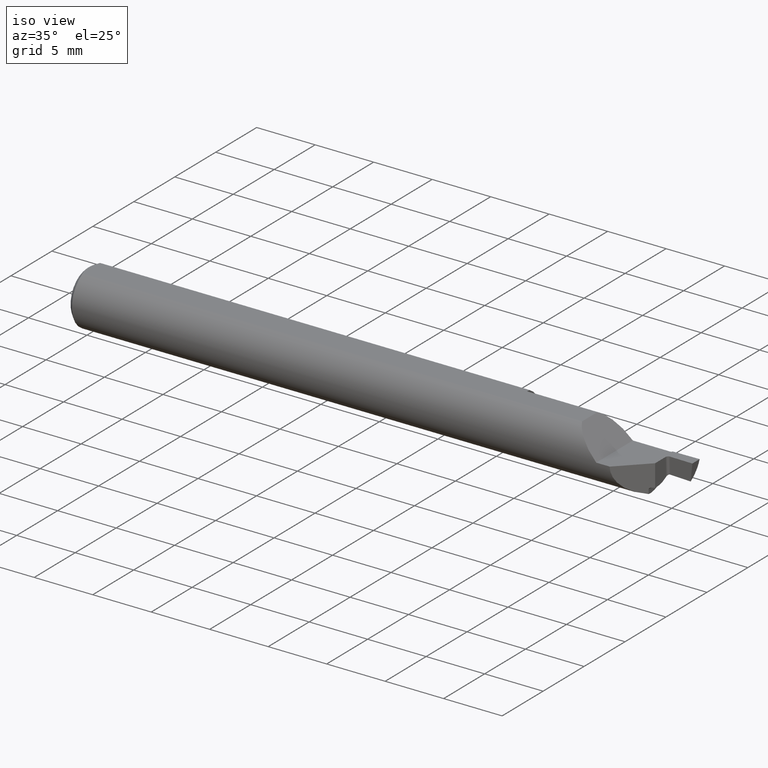
[diagram: clean part render]
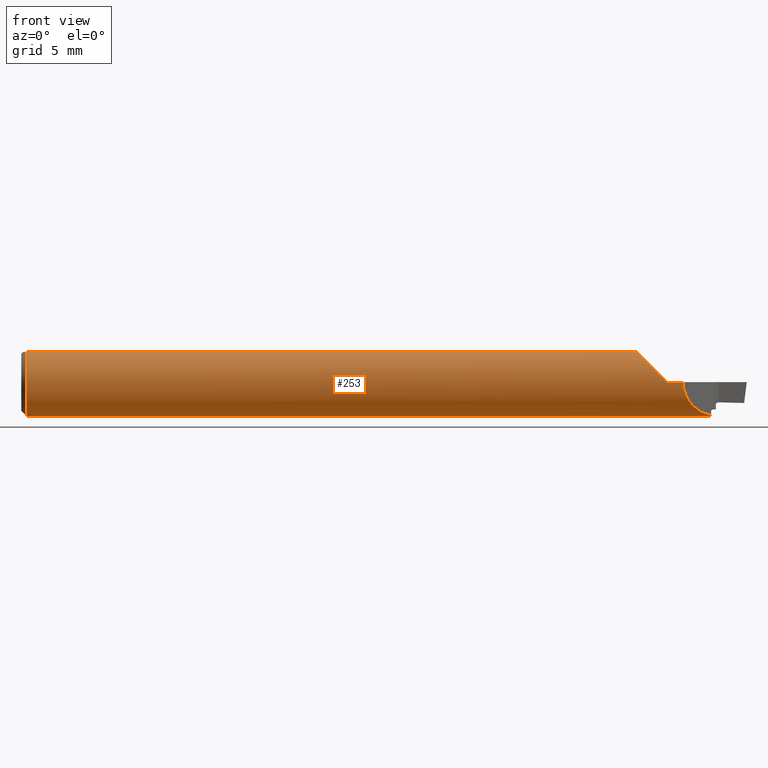
[diagram: tour spotlight — one face highlighted and labeled with its STEP entity id]
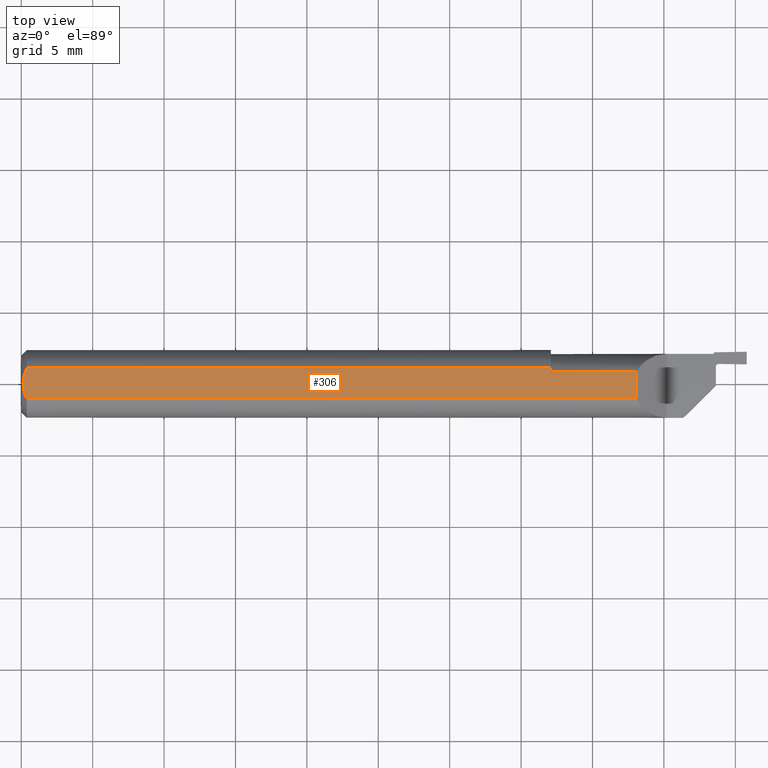
[diagram: tour spotlight — one face highlighted and labeled with its STEP entity id]
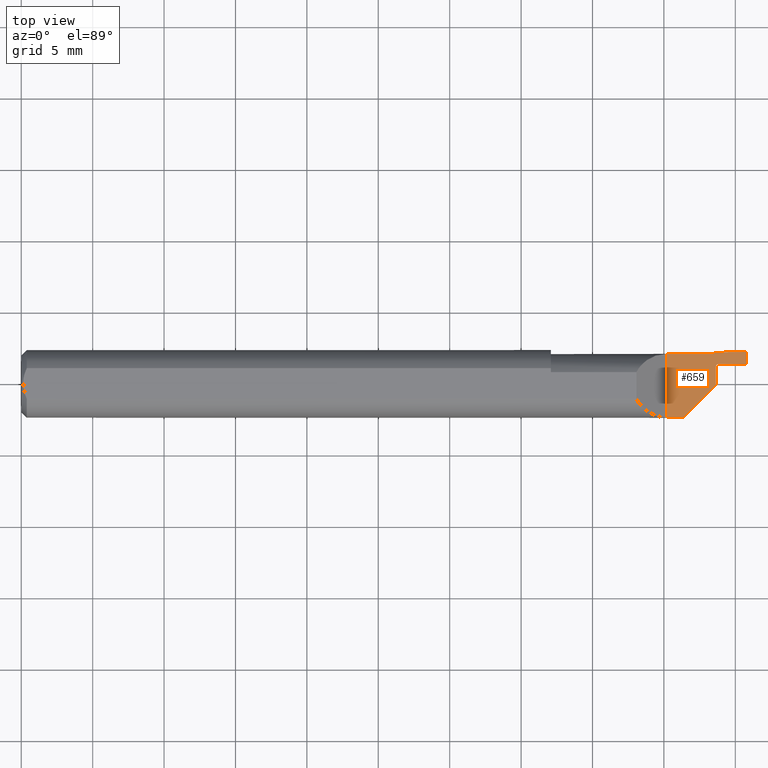
[diagram: tour spotlight — one face highlighted and labeled with its STEP entity id]
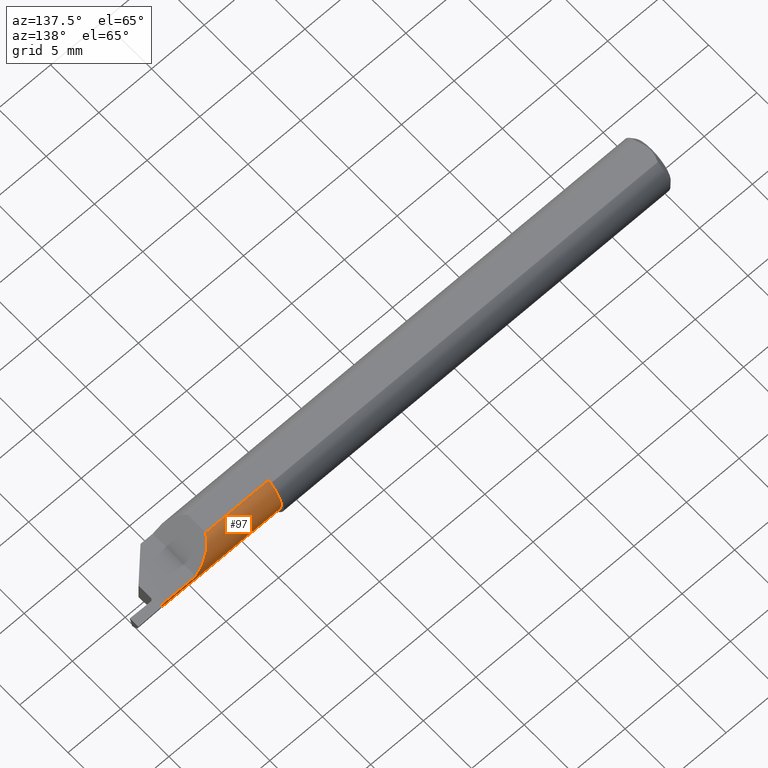
[diagram: tour spotlight — one face highlighted and labeled with its STEP entity id]
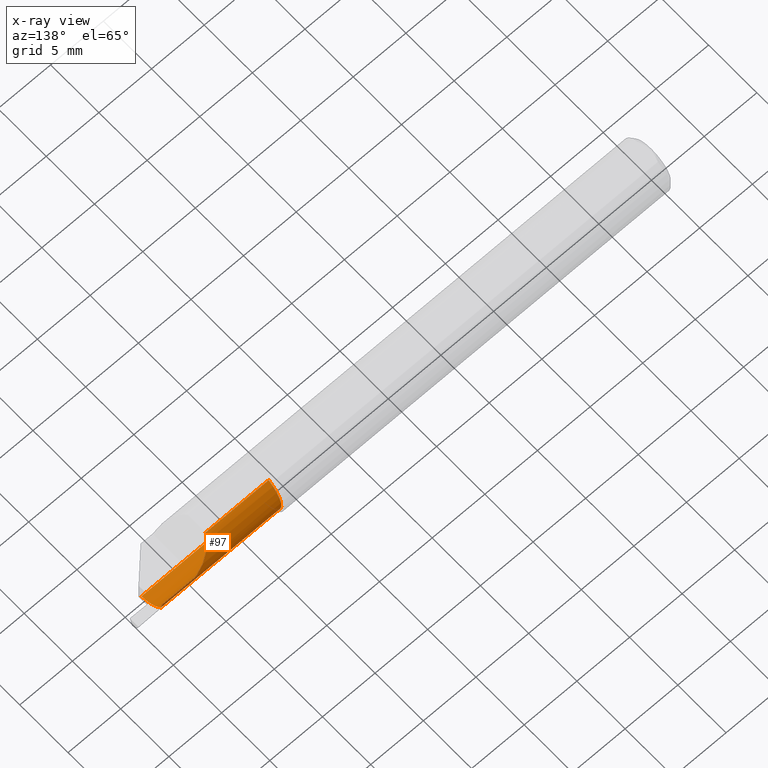
[diagram: x-ray of the same camera — body ghosted, this tour face saturated]
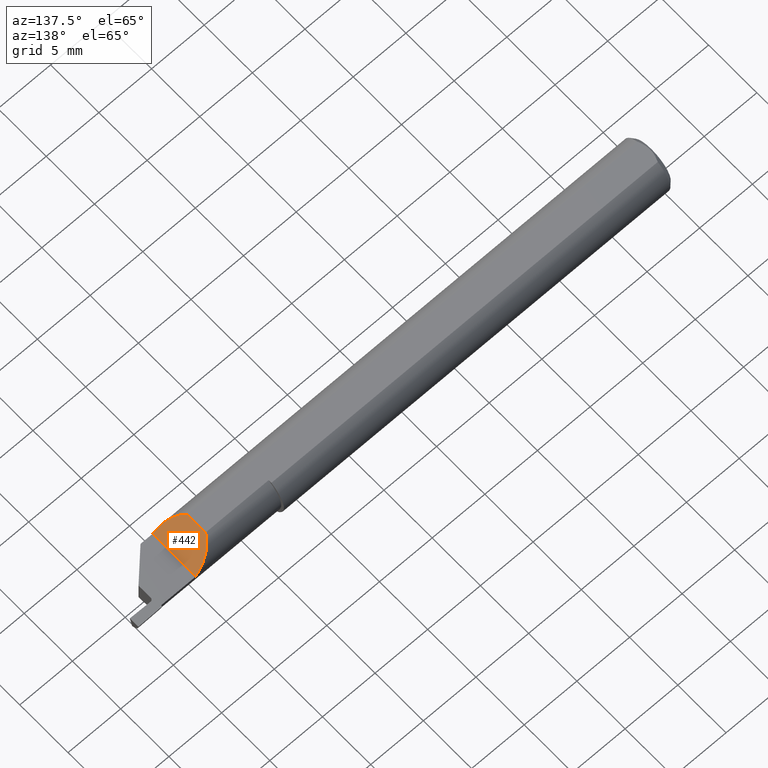
[diagram: tour spotlight — one face highlighted and labeled with its STEP entity id]
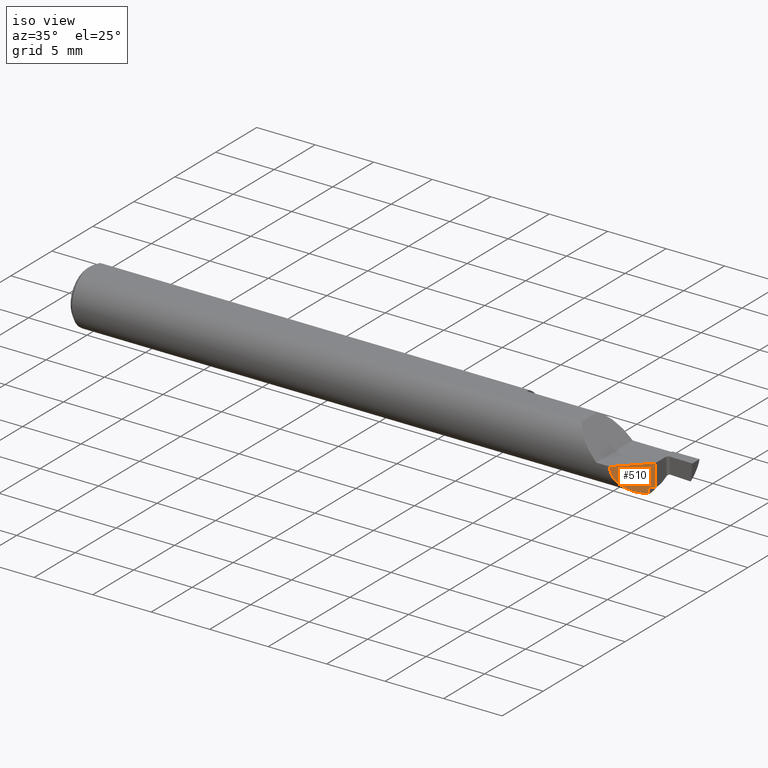
[diagram: tour spotlight — one face highlighted and labeled with its STEP entity id]
A machine part: a face-by-face anatomy tour. The part has 21 B-rep faces; the first image is the clean iso view, then the 6 largest visible faces are spotlighted one at a time (largest first), each with its STEP entity span.

Face 1 — front view, entity #253. In plain terms, the highlighted cylindrical surface (edge-blend (fillet) strip) has radius 2.3774 mm, axis along (-1, -0, -0).
Definition (entity closure, byte-faithful):
#14 = CARTESIAN_POINT ( 'NONE',  ( 1.743269953535348638, -0.09360000000000001652, 0.03633004646465035764 ) ) ;
#26 = CARTESIAN_POINT ( 'NONE',  ( 0.01499999999999997689, 0.000000000000000000, 0.000000000000000000 ) ) ;
#36 = ORIENTED_EDGE ( 'NONE', *, *, #182, .T. ) ;
#38 = DIRECTION ( 'NONE',  ( -1.000000000000000000, -0.000000000000000000, -0.000000000000000000 ) ) ;
#52 = ORIENTED_EDGE ( 'NONE', *, *, #721, .T. ) ;
#57 = LINE ( 'NONE', #354, #665 ) ;
#66 =( BOUNDED_CURVE ( )  B_SPLINE_CURVE ( 3, ( #189, #14, #436, #626 ),
 .UNSPECIFIED., .F., .T. ) 
 B_SPLINE_CURVE_WITH_KNOTS ( ( 4, 4 ),
 ( 4.712388980384689674, 5.816717474156034129 ),
 .UNSPECIFIED. ) 
 CURVE ( )  GEOMETRIC_REPRESENTATION_ITEM ( )  RATIONAL_B_SPLINE_CURVE ( ( 1.000000000000000000, 0.9009275347591065852, 0.9009275347591065852, 1.000000000000000000 ) ) 
 REPRESENTATION_ITEM ( '' )  );
#88 = EDGE_CURVE ( 'NONE', #237, #355, #431, .T. ) ;
#89 = EDGE_CURVE ( 'NONE', #420, #660, #509, .T. ) ;
#99 = CARTESIAN_POINT ( 'NONE',  ( 0.01499999999999997689, -0.04209513035969836975, 0.08360000000000000764 ) ) ;
#103 = CYLINDRICAL_SURFACE ( 'NONE', #705, 0.09360000000000001652 ) ;
#105 = VERTEX_POINT ( 'NONE', #322 ) ;
#112 = EDGE_CURVE ( 'NONE', #233, #420, #714, .T. ) ;
#120 = ORIENTED_EDGE ( 'NONE', *, *, #541, .F. ) ;
#138 = CARTESIAN_POINT ( 'NONE',  ( 1.901789468821874829, -0.009791286923857110344, -0.09315189377763251344 ) ) ;
#182 = EDGE_CURVE ( 'NONE', #393, #227, #207, .T. ) ;
#185 = ORIENTED_EDGE ( 'NONE', *, *, #673, .T. ) ;
#189 = CARTESIAN_POINT ( 'NONE',  ( 1.779599999999998516, -0.09360000000000001652, 0.000000000000000000 ) ) ;
#200 = CARTESIAN_POINT ( 'NONE',  ( 1.901909888257020897, -0.01669011174297880401, -0.09209994663411529003 ) ) ;
#207 = LINE ( 'NONE', #389, #717 ) ;
#212 = ORIENTED_EDGE ( 'NONE', *, *, #112, .T. ) ;
#219 = DIRECTION ( 'NONE',  ( 1.000000000000000000, 0.000000000000000000, 0.000000000000000000 ) ) ;
#226 = CARTESIAN_POINT ( 'NONE',  ( 1.695999999999999286, -0.04209513035969836975, 0.08360000000000000764 ) ) ;
#227 = VERTEX_POINT ( 'NONE', #99 ) ;
#233 = VERTEX_POINT ( 'NONE', #643 ) ;
#237 = VERTEX_POINT ( 'NONE', #398 ) ;
#245 = EDGE_CURVE ( 'NONE', #401, #105, #382, .T. ) ;
#246 = CARTESIAN_POINT ( 'NONE',  ( 0.01499999999999997689, 0.000000000000000000, 0.000000000000000000 ) ) ;
#253 = ADVANCED_FACE ( 'NONE', ( #281 ), #103, .T. ) ;
#257 = DIRECTION ( 'NONE',  ( 0.000000000000000000, 0.000000000000000000, -1.000000000000000000 ) ) ;
#274 = DIRECTION ( 'NONE',  ( 0.000000000000000000, 0.000000000000000000, -1.000000000000000000 ) ) ;
#281 = FACE_OUTER_BOUND ( 'NONE', #303, .T. ) ;
#282 = ORIENTED_EDGE ( 'NONE', *, *, #88, .T. ) ;
#290 = ORIENTED_EDGE ( 'NONE', *, *, #245, .F. ) ;
#296 = CARTESIAN_POINT ( 'NONE',  ( 1.824999999999999512, -0.09360000000000003040, 0.000000000000000000 ) ) ;
#302 = CARTESIAN_POINT ( 'NONE',  ( 1.779599999999998516, -0.09360000000000001652, 0.000000000000000000 ) ) ;
#303 = EDGE_LOOP ( 'NONE', ( #290, #120, #52, #212, #504, #185, #36, #491, #282, #406 ) ) ;
#315 = DIRECTION ( 'NONE',  ( 1.000000000000000000, 0.000000000000000000, 0.000000000000000000 ) ) ;
#322 = CARTESIAN_POINT ( 'NONE',  ( 1.459999999999999964, 0.04209513035969836975, 0.08360000000000000764 ) ) ;
#332 = VECTOR ( 'NONE', #620, 39.37007874015748143 ) ;
#334 = DIRECTION ( 'NONE',  ( 0.000000000000000000, 0.000000000000000000, 1.000000000000000000 ) ) ;
#338 = CARTESIAN_POINT ( 'NONE',  ( 1.459999999999999964, 0.000000000000000000, 0.000000000000000000 ) ) ;
#343 = DIRECTION ( 'NONE',  ( -1.000000000000000000, -0.000000000000000000, -0.000000000000000000 ) ) ;
#354 = CARTESIAN_POINT ( 'NONE',  ( 0.000000000000000000, 0.04209513035969836975, 0.08360000000000000764 ) ) ;
#355 = VERTEX_POINT ( 'NONE', #605 ) ;
#377 = CARTESIAN_POINT ( 'NONE',  ( 1.901728677906842080, -0.006308577734127045721, -0.09338716103925931433 ) ) ;
#382 = CIRCLE ( 'NONE', #549, 0.09360000000000001652 ) ;
#384 = CARTESIAN_POINT ( 'NONE',  ( 1.824999999999999734, -0.09359999999999998876, -0.04733077926877288927 ) ) ;
#388 = EDGE_CURVE ( 'NONE', #355, #105, #57, .T. ) ;
#389 = CARTESIAN_POINT ( 'NONE',  ( 0.000000000000000000, -0.04209513035969836975, 0.08360000000000000764 ) ) ;
#393 = VERTEX_POINT ( 'NONE', #226 ) ;
#398 = CARTESIAN_POINT ( 'NONE',  ( 0.01499999999999997689, 0.000000000000000000, -0.09360000000000003040 ) ) ;
#401 = VERTEX_POINT ( 'NONE', #545 ) ;
#406 = ORIENTED_EDGE ( 'NONE', *, *, #388, .T. ) ;
#412 = CIRCLE ( 'NONE', #562, 0.09360000000000001652 ) ;
#420 = VERTEX_POINT ( 'NONE', #481 ) ;
#431 = CIRCLE ( 'NONE', #597, 0.09360000000000001652 ) ;
#436 = CARTESIAN_POINT ( 'NONE',  ( 1.712338867969052103, -0.07454376160376645355, 0.06726113203094705173 ) ) ;
#447 = CARTESIAN_POINT ( 'NONE',  ( 1.901849935261683777, -0.01325540694044773093, -0.09272237486619804014 ) ) ;
#481 = CARTESIAN_POINT ( 'NONE',  ( 1.824999999999999512, -0.09360000000000003040, 0.000000000000000000 ) ) ;
#491 = ORIENTED_EDGE ( 'NONE', *, *, #709, .T. ) ;
#503 = CARTESIAN_POINT ( 'NONE',  ( 1.901909888257020897, -0.01669011174297880401, -0.09209994663411529003 ) ) ;
#504 = ORIENTED_EDGE ( 'NONE', *, *, #89, .T. ) ;
#509 = LINE ( 'NONE', #764, #332 ) ;
#528 = LINE ( 'NONE', #584, #628 ) ;
#529 = CARTESIAN_POINT ( 'NONE',  ( 0.000000000000000000, 0.000000000000000000, 0.000000000000000000 ) ) ;
#541 = EDGE_CURVE ( 'NONE', #618, #401, #528, .T. ) ;
#545 = CARTESIAN_POINT ( 'NONE',  ( 1.459999999999999964, -0.006308577734120247339, -0.09338716103925938372 ) ) ;
#549 = AXIS2_PLACEMENT_3D ( 'NONE', #338, #219, #274 ) ;
#562 = AXIS2_PLACEMENT_3D ( 'NONE', #246, #315, #691 ) ;
#584 = CARTESIAN_POINT ( 'NONE',  ( 1.683499999999999996, -0.006308577734120256013, -0.09338716103925938372 ) ) ;
#597 = AXIS2_PLACEMENT_3D ( 'NONE', #26, #680, #257 ) ;
#605 = CARTESIAN_POINT ( 'NONE',  ( 0.01499999999999997689, 0.04209513035969836975, 0.08360000000000000764 ) ) ;
#618 = VERTEX_POINT ( 'NONE', #751 ) ;
#620 = DIRECTION ( 'NONE',  ( -1.000000000000000000, -0.000000000000000000, -0.000000000000000000 ) ) ;
#626 = CARTESIAN_POINT ( 'NONE',  ( 1.695999999999999286, -0.04209513035969836975, 0.08360000000000000764 ) ) ;
#628 = VECTOR ( 'NONE', #38, 39.37007874015748143 ) ;
#643 = CARTESIAN_POINT ( 'NONE',  ( 1.901909888257020897, -0.01669011174297880401, -0.09209994663411529003 ) ) ;
#653 = DIRECTION ( 'NONE',  ( -1.000000000000000000, -0.000000000000000000, -0.000000000000000000 ) ) ;
#660 = VERTEX_POINT ( 'NONE', #302 ) ;
#665 = VECTOR ( 'NONE', #794, 39.37007874015748143 ) ;
#673 = EDGE_CURVE ( 'NONE', #660, #393, #66, .T. ) ;
#680 = DIRECTION ( 'NONE',  ( 1.000000000000000000, 0.000000000000000000, 0.000000000000000000 ) ) ;
#691 = DIRECTION ( 'NONE',  ( 0.000000000000000000, 0.000000000000000000, -1.000000000000000000 ) ) ;
#705 = AXIS2_PLACEMENT_3D ( 'NONE', #529, #343, #334 ) ;
#706 = CARTESIAN_POINT ( 'NONE',  ( 1.855337642051838598, -0.06326235794816133240, -0.08366024583413567139 ) ) ;
#709 = EDGE_CURVE ( 'NONE', #227, #237, #412, .T. ) ;
#714 =( BOUNDED_CURVE ( )  B_SPLINE_CURVE ( 3, ( #200, #706, #384, #296 ),
 .UNSPECIFIED., .F., .F. ) 
 B_SPLINE_CURVE_WITH_KNOTS ( ( 4, 4 ),
 ( 4.891660850104666558, 6.283185307179586232 ),
 .UNSPECIFIED. ) 
 CURVE ( )  GEOMETRIC_REPRESENTATION_ITEM ( )  RATIONAL_B_SPLINE_CURVE ( ( 1.000000000000000000, 0.8450435724438003504, 0.8450435724438003504, 1.000000000000000000 ) ) 
 REPRESENTATION_ITEM ( '' )  );
#717 = VECTOR ( 'NONE', #653, 39.37007874015748143 ) ;
#721 = EDGE_CURVE ( 'NONE', #618, #233, #774, .T. ) ;
#751 = CARTESIAN_POINT ( 'NONE',  ( 1.901728677906842080, -0.006308577734127045721, -0.09338716103925931433 ) ) ;
#764 = CARTESIAN_POINT ( 'NONE',  ( 0.000000000000000000, -0.09360000000000001652, 0.000000000000000000 ) ) ;
#774 =( BOUNDED_CURVE ( )  B_SPLINE_CURVE ( 3, ( #377, #138, #447, #503 ),
 .UNSPECIFIED., .F., .T. ) 
 B_SPLINE_CURVE_WITH_KNOTS ( ( 4, 4 ),
 ( 1.638246794983706289, 1.750068196514871666 ),
 .UNSPECIFIED. ) 
 CURVE ( )  GEOMETRIC_REPRESENTATION_ITEM ( )  RATIONAL_B_SPLINE_CURVE ( ( 1.000000000000000000, 0.9989582692604728198, 0.9989582692604728198, 1.000000000000000000 ) ) 
 REPRESENTATION_ITEM ( '' )  );
#794 = DIRECTION ( 'NONE',  ( 1.000000000000000000, 0.000000000000000000, 0.000000000000000000 ) ) ;

Face 2 — top view, entity #306. In plain terms, the highlighted planar face has unit normal (0, 0, -1).
Definition (entity closure, byte-faithful):
#31 = DIRECTION ( 'NONE',  ( 0.000000000000000000, 0.000000000000000000, -1.000000000000000000 ) ) ;
#35 = VECTOR ( 'NONE', #464, 39.37007874015748143 ) ;
#57 = LINE ( 'NONE', #354, #665 ) ;
#58 = EDGE_CURVE ( 'NONE', #221, #227, #496, .T. ) ;
#71 = ORIENTED_EDGE ( 'NONE', *, *, #182, .F. ) ;
#83 = CARTESIAN_POINT ( 'NONE',  ( 0.004999999999999745967, 0.007308422719211837837, 0.08360000000000000764 ) ) ;
#86 = CARTESIAN_POINT ( 'NONE',  ( 0.01206089165507011340, -0.03555991978469319470, 0.08360000000000000764 ) ) ;
#99 = CARTESIAN_POINT ( 'NONE',  ( 0.01499999999999997689, -0.04209513035969836975, 0.08360000000000000764 ) ) ;
#105 = VERTEX_POINT ( 'NONE', #322 ) ;
#130 = VECTOR ( 'NONE', #240, 39.37007874015748143 ) ;
#135 = CARTESIAN_POINT ( 'NONE',  ( 0.005981829149300420256, 0.01454044632356572483, 0.08359999999999997988 ) ) ;
#140 = CARTESIAN_POINT ( 'NONE',  ( 0.004999999999999748569, -0.007328888879231088525, 0.08360000000000000764 ) ) ;
#176 = ORIENTED_EDGE ( 'NONE', *, *, #220, .F. ) ;
#182 = EDGE_CURVE ( 'NONE', #393, #227, #207, .T. ) ;
#183 = CARTESIAN_POINT ( 'NONE',  ( 0.01499999999999997689, -0.04209513035969836975, 0.08360000000000000764 ) ) ;
#202 = CARTESIAN_POINT ( 'NONE',  ( 0.01499999999999997689, 0.04209513035969836975, 0.08360000000000000764 ) ) ;
#207 = LINE ( 'NONE', #389, #717 ) ;
#220 = EDGE_CURVE ( 'NONE', #105, #560, #461, .T. ) ;
#221 = VERTEX_POINT ( 'NONE', #581 ) ;
#226 = CARTESIAN_POINT ( 'NONE',  ( 1.695999999999999286, -0.04209513035969836975, 0.08360000000000000764 ) ) ;
#227 = VERTEX_POINT ( 'NONE', #99 ) ;
#240 = DIRECTION ( 'NONE',  ( -0.000000000000000000, 1.000000000000000000, 0.000000000000000000 ) ) ;
#259 = DIRECTION ( 'NONE',  ( -1.000000000000000000, 0.000000000000000000, -0.000000000000000000 ) ) ;
#270 = EDGE_LOOP ( 'NONE', ( #176, #476, #471, #378, #71, #789, #536 ) ) ;
#287 = CARTESIAN_POINT ( 'NONE',  ( 1.695999999999999286, 0.04209513035969836975, 0.08360000000000000764 ) ) ;
#306 = ADVANCED_FACE ( 'NONE', ( #707 ), #324, .F. ) ;
#317 = CARTESIAN_POINT ( 'NONE',  ( 0.009539353699420572222, -0.02875682547511376752, 0.08359999999999997988 ) ) ;
#319 = AXIS2_PLACEMENT_3D ( 'NONE', #578, #31, #259 ) ;
#322 = CARTESIAN_POINT ( 'NONE',  ( 1.459999999999999964, 0.04209513035969836975, 0.08360000000000000764 ) ) ;
#323 = CARTESIAN_POINT ( 'NONE',  ( 0.009492654797564087366, 0.02859466010166635333, 0.08360000000000000764 ) ) ;
#324 = PLANE ( 'NONE',  #319 ) ;
#337 = LINE ( 'NONE', #587, #35 ) ;
#354 = CARTESIAN_POINT ( 'NONE',  ( 0.000000000000000000, 0.04209513035969836975, 0.08360000000000000764 ) ) ;
#355 = VERTEX_POINT ( 'NONE', #605 ) ;
#378 = ORIENTED_EDGE ( 'NONE', *, *, #58, .T. ) ;
#388 = EDGE_CURVE ( 'NONE', #355, #105, #57, .T. ) ;
#389 = CARTESIAN_POINT ( 'NONE',  ( 0.000000000000000000, -0.04209513035969836975, 0.08360000000000000764 ) ) ;
#393 = VERTEX_POINT ( 'NONE', #226 ) ;
#451 = VECTOR ( 'NONE', #716, 39.37007874015748143 ) ;
#457 = CARTESIAN_POINT ( 'NONE',  ( 1.459999999999999964, -0.1936000000000000221, 0.08360000000000000764 ) ) ;
#461 = LINE ( 'NONE', #457, #451 ) ;
#464 = DIRECTION ( 'NONE',  ( 1.000000000000000000, 0.000000000000000000, 0.000000000000000000 ) ) ;
#471 = ORIENTED_EDGE ( 'NONE', *, *, #698, .T. ) ;
#476 = ORIENTED_EDGE ( 'NONE', *, *, #388, .F. ) ;
#493 = LINE ( 'NONE', #287, #130 ) ;
#496 = B_SPLINE_CURVE_WITH_KNOTS ( 'NONE', 3,
 ( #634, #140, #746, #317, #86, #183 ),
 .UNSPECIFIED., .F., .F.,
 ( 4, 2, 4 ),
 ( 0.002614097267282436323, 0.003163218599391053043, 0.003712339931499670197 ),
 .UNSPECIFIED. ) ;
#520 = VERTEX_POINT ( 'NONE', #646 ) ;
#536 = ORIENTED_EDGE ( 'NONE', *, *, #556, .F. ) ;
#547 = B_SPLINE_CURVE_WITH_KNOTS ( 'NONE', 3,
 ( #202, #699, #323, #135, #83, #577 ),
 .UNSPECIFIED., .F., .F.,
 ( 4, 2, 4 ),
 ( 0.001518921481343232533, 0.002066509374312834428, 0.002614097267282436323 ),
 .UNSPECIFIED. ) ;
#556 = EDGE_CURVE ( 'NONE', #560, #520, #337, .T. ) ;
#560 = VERTEX_POINT ( 'NONE', #719 ) ;
#566 = EDGE_CURVE ( 'NONE', #393, #520, #493, .T. ) ;
#577 = CARTESIAN_POINT ( 'NONE',  ( 0.004999999999999758110, 1.025183009042025117E-17, 0.08360000000000000764 ) ) ;
#578 = CARTESIAN_POINT ( 'NONE',  ( 0.000000000000000000, -0.1936000000000000221, 0.08360000000000000764 ) ) ;
#581 = CARTESIAN_POINT ( 'NONE',  ( 0.004999999999999758110, 1.025183009042025117E-17, 0.08360000000000000764 ) ) ;
#587 = CARTESIAN_POINT ( 'NONE',  ( 1.660946387129862867, 0.03097154424326387101, 0.08360000000000000764 ) ) ;
#605 = CARTESIAN_POINT ( 'NONE',  ( 0.01499999999999997689, 0.04209513035969836975, 0.08360000000000000764 ) ) ;
#634 = CARTESIAN_POINT ( 'NONE',  ( 0.004999999999999758110, 1.025183009042025117E-17, 0.08360000000000000764 ) ) ;
#646 = CARTESIAN_POINT ( 'NONE',  ( 1.695999999999999286, 0.03097154424326387101, 0.08360000000000000764 ) ) ;
#653 = DIRECTION ( 'NONE',  ( -1.000000000000000000, -0.000000000000000000, -0.000000000000000000 ) ) ;
#665 = VECTOR ( 'NONE', #794, 39.37007874015748143 ) ;
#698 = EDGE_CURVE ( 'NONE', #355, #221, #547, .T. ) ;
#699 = CARTESIAN_POINT ( 'NONE',  ( 0.01203648650249636819, 0.03550565407121131223, 0.08360000000000000764 ) ) ;
#707 = FACE_OUTER_BOUND ( 'NONE', #270, .T. ) ;
#716 = DIRECTION ( 'NONE',  ( 0.000000000000000000, -1.000000000000000000, 0.000000000000000000 ) ) ;
#717 = VECTOR ( 'NONE', #653, 39.37007874015748143 ) ;
#719 = CARTESIAN_POINT ( 'NONE',  ( 1.459999999999999964, 0.03097154424326387101, 0.08360000000000000764 ) ) ;
#746 = CARTESIAN_POINT ( 'NONE',  ( 0.005975039161239103364, -0.01453776427033152789, 0.08360000000000000764 ) ) ;
#789 = ORIENTED_EDGE ( 'NONE', *, *, #566, .T. ) ;
#794 = DIRECTION ( 'NONE',  ( 1.000000000000000000, 0.000000000000000000, 0.000000000000000000 ) ) ;

Face 3 — top view, entity #659. In plain terms, the highlighted planar face has unit normal (0, 0, -1).
Definition (entity closure, byte-faithful):
#1 = CARTESIAN_POINT ( 'NONE',  ( 1.779599999999998516, -0.1936000000000000221, 0.000000000000000000 ) ) ;
#15 = EDGE_CURVE ( 'NONE', #788, #347, #403, .T. ) ;
#30 = EDGE_CURVE ( 'NONE', #213, #390, #514, .T. ) ;
#39 = CARTESIAN_POINT ( 'NONE',  ( 2.100072031547824736, 0.09034600216794493044, 0.000000000000000000 ) ) ;
#43 = DIRECTION ( 'NONE',  ( 0.000000000000000000, 1.000000000000000000, 0.000000000000000000 ) ) ;
#64 = LINE ( 'NONE', #1, #85 ) ;
#82 = CARTESIAN_POINT ( 'NONE',  ( 1.906999999999999806, 0.08559923835978050510, 0.000000000000000000 ) ) ;
#85 = VECTOR ( 'NONE', #230, 39.37007874015748143 ) ;
#89 = EDGE_CURVE ( 'NONE', #420, #660, #509, .T. ) ;
#91 = ORIENTED_EDGE ( 'NONE', *, *, #235, .F. ) ;
#96 = DIRECTION ( 'NONE',  ( 0.9998476951563914916, 0.01745240643726934590, 0.000000000000000000 ) ) ;
#98 = DIRECTION ( 'NONE',  ( 0.9998476951563912696, -0.01745240643727513294, 0.000000000000000000 ) ) ;
#102 = CARTESIAN_POINT ( 'NONE',  ( 1.923139705841341307, 0.05494083978472108498, -7.469896857675718968E-18 ) ) ;
#104 = ORIENTED_EDGE ( 'NONE', *, *, #399, .T. ) ;
#114 = ORIENTED_EDGE ( 'NONE', *, *, #433, .T. ) ;
#126 = PLANE ( 'NONE',  #263 ) ;
#129 = LINE ( 'NONE', #570, #733 ) ;
#146 = LINE ( 'NONE', #39, #735 ) ;
#149 = CARTESIAN_POINT ( 'NONE',  ( 1.909999999999999920, 0.08702828251624213085, 0.000000000000000000 ) ) ;
#161 = CARTESIAN_POINT ( 'NONE',  ( 1.915000000000000036, 0.04694205973490127998, 0.000000000000000000 ) ) ;
#165 = ORIENTED_EDGE ( 'NONE', *, *, #574, .T. ) ;
#167 = EDGE_CURVE ( 'NONE', #777, #213, #525, .T. ) ;
#169 = LINE ( 'NONE', #288, #787 ) ;
#213 = VERTEX_POINT ( 'NONE', #644 ) ;
#228 = ORIENTED_EDGE ( 'NONE', *, *, #772, .T. ) ;
#230 = DIRECTION ( 'NONE',  ( 0.000000000000000000, -1.000000000000000000, 0.000000000000000000 ) ) ;
#231 = VECTOR ( 'NONE', #352, 39.37007874015748143 ) ;
#235 = EDGE_CURVE ( 'NONE', #390, #551, #453, .T. ) ;
#250 = VECTOR ( 'NONE', #776, 39.37007874015748143 ) ;
#263 = AXIS2_PLACEMENT_3D ( 'NONE', #421, #559, #676 ) ;
#288 = CARTESIAN_POINT ( 'NONE',  ( 1.915000000000000036, -0.1936000000000000221, 0.000000000000000000 ) ) ;
#294 = AXIS2_PLACEMENT_3D ( 'NONE', #686, #609, #495 ) ;
#295 = VERTEX_POINT ( 'NONE', #161 ) ;
#302 = CARTESIAN_POINT ( 'NONE',  ( 1.779599999999998516, -0.09360000000000001652, 0.000000000000000000 ) ) ;
#309 = EDGE_CURVE ( 'NONE', #551, #347, #146, .T. ) ;
#332 = VECTOR ( 'NONE', #620, 39.37007874015748143 ) ;
#341 = ORIENTED_EDGE ( 'NONE', *, *, #89, .F. ) ;
#347 = VERTEX_POINT ( 'NONE', #359 ) ;
#352 = DIRECTION ( 'NONE',  ( 0.000000000000000000, 1.000000000000000000, 0.000000000000000000 ) ) ;
#359 = CARTESIAN_POINT ( 'NONE',  ( 2.000000000000000000, 0.08859923835978048001, 2.625135181411753044E-16 ) ) ;
#365 = AXIS2_PLACEMENT_3D ( 'NONE', #82, #488, #446 ) ;
#372 = DIRECTION ( 'NONE',  ( 0.7071067811865490160, 0.7071067811865459074, 0.000000000000000000 ) ) ;
#390 = VERTEX_POINT ( 'NONE', #743 ) ;
#397 = LINE ( 'NONE', #652, #649 ) ;
#399 = EDGE_CURVE ( 'NONE', #739, #295, #169, .T. ) ;
#403 = LINE ( 'NONE', #655, #231 ) ;
#408 = CARTESIAN_POINT ( 'NONE',  ( 2.000000000000000000, 0.05359923835978044199, 0.000000000000000000 ) ) ;
#420 = VERTEX_POINT ( 'NONE', #481 ) ;
#421 = CARTESIAN_POINT ( 'NONE',  ( 1.779999999999999805, -0.1936000000000000221, 0.000000000000000000 ) ) ;
#428 = DIRECTION ( 'NONE',  ( 0.000000000000000000, 1.000000000000000000, 0.000000000000000000 ) ) ;
#433 = EDGE_CURVE ( 'NONE', #777, #660, #64, .T. ) ;
#440 = VERTEX_POINT ( 'NONE', #102 ) ;
#446 = DIRECTION ( 'NONE',  ( -1.000000000000000000, 0.000000000000000000, 0.000000000000000000 ) ) ;
#453 = LINE ( 'NONE', #657, #683 ) ;
#458 = ORIENTED_EDGE ( 'NONE', *, *, #554, .T. ) ;
#466 = ORIENTED_EDGE ( 'NONE', *, *, #309, .F. ) ;
#481 = CARTESIAN_POINT ( 'NONE',  ( 1.824999999999999512, -0.09360000000000003040, 0.000000000000000000 ) ) ;
#488 = DIRECTION ( 'NONE',  ( -0.000000000000000000, -0.000000000000000000, 1.000000000000000000 ) ) ;
#495 = DIRECTION ( 'NONE',  ( -1.000000000000000000, 0.000000000000000000, 0.000000000000000000 ) ) ;
#509 = LINE ( 'NONE', #764, #332 ) ;
#511 = CARTESIAN_POINT ( 'NONE',  ( 1.915000000000000036, -0.003600000000000014213, 0.000000000000000000 ) ) ;
#514 = CIRCLE ( 'NONE', #365, 0.002999999999999940648 ) ;
#525 = LINE ( 'NONE', #727, #250 ) ;
#551 = VERTEX_POINT ( 'NONE', #149 ) ;
#554 = EDGE_CURVE ( 'NONE', #440, #788, #397, .T. ) ;
#559 = DIRECTION ( 'NONE',  ( 0.000000000000000000, 0.000000000000000000, -1.000000000000000000 ) ) ;
#565 = CARTESIAN_POINT ( 'NONE',  ( 1.779599999999998516, 0.08259923835978043305, 0.000000000000000000 ) ) ;
#570 = CARTESIAN_POINT ( 'NONE',  ( 1.752499999999999725, -0.1660999999999996368, 0.000000000000000000 ) ) ;
#574 = EDGE_CURVE ( 'NONE', #295, #440, #582, .T. ) ;
#582 = CIRCLE ( 'NONE', #294, 0.008000000000000024453 ) ;
#591 = EDGE_LOOP ( 'NONE', ( #728, #114, #341, #228, #104, #165, #458, #650, #466, #91, #781 ) ) ;
#609 = DIRECTION ( 'NONE',  ( 0.000000000000000000, 0.000000000000000000, -1.000000000000000000 ) ) ;
#620 = DIRECTION ( 'NONE',  ( -1.000000000000000000, -0.000000000000000000, -0.000000000000000000 ) ) ;
#644 = CARTESIAN_POINT ( 'NONE',  ( 1.906999999999999806, 0.08259923835978048856, 0.000000000000000000 ) ) ;
#649 = VECTOR ( 'NONE', #98, 39.37007874015748854 ) ;
#650 = ORIENTED_EDGE ( 'NONE', *, *, #15, .T. ) ;
#652 = CARTESIAN_POINT ( 'NONE',  ( 1.784380573529896097, 0.05736288944859935235, 0.000000000000000000 ) ) ;
#655 = CARTESIAN_POINT ( 'NONE',  ( 2.000000000000000000, -0.1936000000000000221, 0.000000000000000000 ) ) ;
#657 = CARTESIAN_POINT ( 'NONE',  ( 1.909999999999999920, -0.1936000000000000221, 0.000000000000000000 ) ) ;
#659 = ADVANCED_FACE ( 'NONE', ( #737 ), #126, .F. ) ;
#660 = VERTEX_POINT ( 'NONE', #302 ) ;
#676 = DIRECTION ( 'NONE',  ( -1.000000000000000000, 0.000000000000000000, -0.000000000000000000 ) ) ;
#683 = VECTOR ( 'NONE', #43, 39.37007874015748143 ) ;
#686 = CARTESIAN_POINT ( 'NONE',  ( 1.923000000000000043, 0.04694205973490127998, 0.000000000000000000 ) ) ;
#727 = CARTESIAN_POINT ( 'NONE',  ( 1.660946387129862867, 0.08259923835978047468, 0.000000000000000000 ) ) ;
#728 = ORIENTED_EDGE ( 'NONE', *, *, #167, .F. ) ;
#733 = VECTOR ( 'NONE', #372, 39.37007874015748854 ) ;
#735 = VECTOR ( 'NONE', #96, 39.37007874015748143 ) ;
#737 = FACE_OUTER_BOUND ( 'NONE', #591, .T. ) ;
#739 = VERTEX_POINT ( 'NONE', #511 ) ;
#743 = CARTESIAN_POINT ( 'NONE',  ( 1.909999999999999920, 0.08559923835978050510, 0.000000000000000000 ) ) ;
#764 = CARTESIAN_POINT ( 'NONE',  ( 0.000000000000000000, -0.09360000000000001652, 0.000000000000000000 ) ) ;
#772 = EDGE_CURVE ( 'NONE', #420, #739, #129, .T. ) ;
#776 = DIRECTION ( 'NONE',  ( 1.000000000000000000, 0.000000000000000000, 0.000000000000000000 ) ) ;
#777 = VERTEX_POINT ( 'NONE', #565 ) ;
#781 = ORIENTED_EDGE ( 'NONE', *, *, #30, .F. ) ;
#787 = VECTOR ( 'NONE', #428, 39.37007874015748143 ) ;
#788 = VERTEX_POINT ( 'NONE', #408 ) ;

Face 4 — auxiliary view, entity #97. An x-ray twin of the same camera follows (body ghosted, this face saturated) — the face is partly hidden behind the body. In plain terms, the highlighted cylindrical surface (edge-blend (fillet) strip) has radius 2.3749 mm, axis along (-1, -0, -0).
Definition (entity closure, byte-faithful):
#8 = ORIENTED_EDGE ( 'NONE', *, *, #137, .F. ) ;
#13 = CARTESIAN_POINT ( 'NONE',  ( 1.779599999999998516, 0.08259923835978043305, 0.000000000000000000 ) ) ;
#19 = AXIS2_PLACEMENT_3D ( 'NONE', #417, #113, #54 ) ;
#23 = CARTESIAN_POINT ( 'NONE',  ( 1.695999999999999286, 0.03097154424326387101, 0.08360000000000000764 ) ) ;
#35 = VECTOR ( 'NONE', #464, 39.37007874015748143 ) ;
#38 = DIRECTION ( 'NONE',  ( -1.000000000000000000, -0.000000000000000000, -0.000000000000000000 ) ) ;
#54 = DIRECTION ( 'NONE',  ( 0.000000000000000000, 0.000000000000000000, 1.000000000000000000 ) ) ;
#62 = VERTEX_POINT ( 'NONE', #376 ) ;
#90 = CARTESIAN_POINT ( 'NONE',  ( 1.905840104053412976, 0.07784846627859837165, -0.02942494915921045964 ) ) ;
#94 = DIRECTION ( 'NONE',  ( 0.000000000000000000, 0.000000000000000000, 1.000000000000000000 ) ) ;
#95 = AXIS2_PLACEMENT_3D ( 'NONE', #656, #456, #94 ) ;
#97 = ADVANCED_FACE ( 'NONE', ( #444 ), #125, .T. ) ;
#113 = DIRECTION ( 'NONE',  ( -1.000000000000000000, -0.000000000000000000, -0.000000000000000000 ) ) ;
#125 = CYLINDRICAL_SURFACE ( 'NONE', #396, 0.09349999999999999978 ) ;
#136 = DIRECTION ( 'NONE',  ( -1.000000000000000000, -0.000000000000000000, -0.000000000000000000 ) ) ;
#137 = EDGE_CURVE ( 'NONE', #777, #520, #344, .T. ) ;
#147 = EDGE_CURVE ( 'NONE', #62, #618, #407, .T. ) ;
#156 = CARTESIAN_POINT ( 'NONE',  ( 1.906999999999999806, 0.07781348418592398675, -0.02953019789128717709 ) ) ;
#160 = CARTESIAN_POINT ( 'NONE',  ( 1.900437573559872639, 0.06765874076451616759, -0.05094391182363273290 ) ) ;
#166 = CARTESIAN_POINT ( 'NONE',  ( 1.902685637353578540, 0.07651002556365837926, -0.03321202638859748618 ) ) ;
#167 = EDGE_CURVE ( 'NONE', #777, #213, #525, .T. ) ;
#170 = CIRCLE ( 'NONE', #95, 0.09350000000000002753 ) ;
#173 = VERTEX_POINT ( 'NONE', #329 ) ;
#191 = EDGE_CURVE ( 'NONE', #277, #173, #695, .T. ) ;
#198 = DIRECTION ( 'NONE',  ( 0.000000000000000000, 0.000000000000000000, 1.000000000000000000 ) ) ;
#209 = B_SPLINE_CURVE_WITH_KNOTS ( 'NONE', 3,
 ( #348, #218, #214, #469, #225, #166, #710, #391, #726, #414, #160, #667 ),
 .UNSPECIFIED., .F., .F.,
 ( 4, 2, 2, 2, 2, 4 ),
 ( 7.164730493881761890E-05, 0.0001199185645158257674, 0.0001681898240928339158, 0.0002647323432468497249, 0.0004578173815548813429, 0.0008439874581709454465 ),
 .UNSPECIFIED. ) ;
#213 = VERTEX_POINT ( 'NONE', #644 ) ;
#214 = CARTESIAN_POINT ( 'NONE',  ( 1.904159361167143016, 0.07768036786545724770, -0.02993216137432031659 ) ) ;
#218 = CARTESIAN_POINT ( 'NONE',  ( 1.904624423976781111, 0.07788506681747428551, -0.02931433740435424734 ) ) ;
#225 = CARTESIAN_POINT ( 'NONE',  ( 1.903301054385771574, 0.07712654616559803944, -0.03152462029223320611 ) ) ;
#242 = CARTESIAN_POINT ( 'NONE',  ( 1.743231059775836922, 0.08259923835978047468, 0.03636894022416205935 ) ) ;
#249 = CARTESIAN_POINT ( 'NONE',  ( 1.900784079159449247, 0.04780744826051475799, -0.07826626310158363298 ) ) ;
#250 = VECTOR ( 'NONE', #776, 39.37007874015748143 ) ;
#254 = CARTESIAN_POINT ( 'NONE',  ( 1.660946387129862867, -0.01090076164021952856, 0.000000000000000000 ) ) ;
#265 = CARTESIAN_POINT ( 'NONE',  ( 1.901728677906842080, -0.006308577734127045721, -0.09338716103925931433 ) ) ;
#269 = CARTESIAN_POINT ( 'NONE',  ( 1.905260168111437169, 0.07786592643805362313, -0.02937218220722300974 ) ) ;
#277 = VERTEX_POINT ( 'NONE', #585 ) ;
#286 = ORIENTED_EDGE ( 'NONE', *, *, #524, .T. ) ;
#300 = ORIENTED_EDGE ( 'NONE', *, *, #167, .T. ) ;
#313 = CARTESIAN_POINT ( 'NONE',  ( 1.900488489910513890, 0.06474174499051200959, -0.05495872260724164737 ) ) ;
#329 = CARTESIAN_POINT ( 'NONE',  ( 1.906999999999999806, 0.07781348418592398675, -0.02953019789128717709 ) ) ;
#335 = EDGE_LOOP ( 'NONE', ( #741, #8, #300, #286, #730, #463, #722, #409, #515 ) ) ;
#337 = LINE ( 'NONE', #587, #35 ) ;
#344 =( BOUNDED_CURVE ( )  B_SPLINE_CURVE ( 3, ( #13, #242, #750, #23 ),
 .UNSPECIFIED., .F., .F. ) 
 B_SPLINE_CURVE_WITH_KNOTS ( ( 4, 4 ),
 ( 4.712388980384689674, 5.818846015254569792 ),
 .UNSPECIFIED. ) 
 CURVE ( )  GEOMETRIC_REPRESENTATION_ITEM ( )  RATIONAL_B_SPLINE_CURVE ( ( 1.000000000000000000, 0.9005550513955334901, 0.9005550513955334901, 1.000000000000000000 ) ) 
 REPRESENTATION_ITEM ( '' )  );
#348 = CARTESIAN_POINT ( 'NONE',  ( 1.905260168111437169, 0.07786592643805362313, -0.02937218220722300974 ) ) ;
#349 = CIRCLE ( 'NONE', #19, 0.09349999999999999978 ) ;
#376 = CARTESIAN_POINT ( 'NONE',  ( 1.900488489910513890, 0.06474174499051200959, -0.05495872260724164737 ) ) ;
#387 = EDGE_CURVE ( 'NONE', #560, #401, #349, .T. ) ;
#391 = CARTESIAN_POINT ( 'NONE',  ( 1.901653078585776591, 0.07467193290329079969, -0.03775699062248234067 ) ) ;
#396 = AXIS2_PLACEMENT_3D ( 'NONE', #254, #136, #198 ) ;
#401 = VERTEX_POINT ( 'NONE', #545 ) ;
#407 =( BOUNDED_CURVE ( )  B_SPLINE_CURVE ( 3, ( #313, #249, #761, #265 ),
 .UNSPECIFIED., .F., .T. ) 
 B_SPLINE_CURVE_WITH_KNOTS ( ( 4, 4 ),
 ( 0.6283291268079855829, 1.521662293291339507 ),
 .UNSPECIFIED. ) 
 CURVE ( )  GEOMETRIC_REPRESENTATION_ITEM ( )  RATIONAL_B_SPLINE_CURVE ( ( 1.000000000000000000, 0.9345946788923544801, 0.9345946788923544801, 1.000000000000000000 ) ) 
 REPRESENTATION_ITEM ( '' )  );
#409 = ORIENTED_EDGE ( 'NONE', *, *, #541, .T. ) ;
#414 = CARTESIAN_POINT ( 'NONE',  ( 1.900600193056213527, 0.07024888610877730311, -0.04671097493651391735 ) ) ;
#417 = CARTESIAN_POINT ( 'NONE',  ( 1.459999999999999964, -0.01090076164021952856, 0.000000000000000000 ) ) ;
#444 = FACE_OUTER_BOUND ( 'NONE', #335, .T. ) ;
#456 = DIRECTION ( 'NONE',  ( -1.000000000000000000, -0.000000000000000000, -0.000000000000000000 ) ) ;
#463 = ORIENTED_EDGE ( 'NONE', *, *, #508, .T. ) ;
#464 = DIRECTION ( 'NONE',  ( 1.000000000000000000, 0.000000000000000000, 0.000000000000000000 ) ) ;
#469 = CARTESIAN_POINT ( 'NONE',  ( 1.903532304466862390, 0.07732313885714185708, -0.03096924555218472791 ) ) ;
#508 = EDGE_CURVE ( 'NONE', #277, #62, #209, .T. ) ;
#515 = ORIENTED_EDGE ( 'NONE', *, *, #387, .F. ) ;
#520 = VERTEX_POINT ( 'NONE', #646 ) ;
#524 = EDGE_CURVE ( 'NONE', #213, #173, #170, .T. ) ;
#525 = LINE ( 'NONE', #727, #250 ) ;
#528 = LINE ( 'NONE', #584, #628 ) ;
#541 = EDGE_CURVE ( 'NONE', #618, #401, #528, .T. ) ;
#545 = CARTESIAN_POINT ( 'NONE',  ( 1.459999999999999964, -0.006308577734120247339, -0.09338716103925938372 ) ) ;
#556 = EDGE_CURVE ( 'NONE', #560, #520, #337, .T. ) ;
#560 = VERTEX_POINT ( 'NONE', #719 ) ;
#565 = CARTESIAN_POINT ( 'NONE',  ( 1.779599999999998516, 0.08259923835978043305, 0.000000000000000000 ) ) ;
#584 = CARTESIAN_POINT ( 'NONE',  ( 1.683499999999999996, -0.006308577734120256013, -0.09338716103925938372 ) ) ;
#585 = CARTESIAN_POINT ( 'NONE',  ( 1.905260168111437169, 0.07786592643805362313, -0.02937218220722300974 ) ) ;
#587 = CARTESIAN_POINT ( 'NONE',  ( 1.660946387129862867, 0.03097154424326387101, 0.08360000000000000764 ) ) ;
#618 = VERTEX_POINT ( 'NONE', #751 ) ;
#628 = VECTOR ( 'NONE', #38, 39.37007874015748143 ) ;
#644 = CARTESIAN_POINT ( 'NONE',  ( 1.906999999999999806, 0.08259923835978048856, 0.000000000000000000 ) ) ;
#646 = CARTESIAN_POINT ( 'NONE',  ( 1.695999999999999286, 0.03097154424326387101, 0.08360000000000000764 ) ) ;
#656 = CARTESIAN_POINT ( 'NONE',  ( 1.906999999999999806, -0.01090076164021952856, 0.000000000000000000 ) ) ;
#667 = CARTESIAN_POINT ( 'NONE',  ( 1.900488489910513890, 0.06474174499051200959, -0.05495872260724164737 ) ) ;
#695 = B_SPLINE_CURVE_WITH_KNOTS ( 'NONE', 3,
 ( #269, #90, #785, #156 ),
 .UNSPECIFIED., .F., .F.,
 ( 4, 4 ),
 ( 2.091245844657973203E-17, 4.439360631975064589E-05 ),
 .UNSPECIFIED. ) ;
#710 = CARTESIAN_POINT ( 'NONE',  ( 1.902398241597839990, 0.07606946839037130592, -0.03435019194272290188 ) ) ;
#719 = CARTESIAN_POINT ( 'NONE',  ( 1.459999999999999964, 0.03097154424326387101, 0.08360000000000000764 ) ) ;
#722 = ORIENTED_EDGE ( 'NONE', *, *, #147, .T. ) ;
#726 = CARTESIAN_POINT ( 'NONE',  ( 1.901332284186126875, 0.07363376697762119560, -0.04002994002850793903 ) ) ;
#727 = CARTESIAN_POINT ( 'NONE',  ( 1.660946387129862867, 0.08259923835978047468, 0.000000000000000000 ) ) ;
#730 = ORIENTED_EDGE ( 'NONE', *, *, #191, .F. ) ;
#741 = ORIENTED_EDGE ( 'NONE', *, *, #556, .T. ) ;
#750 = CARTESIAN_POINT ( 'NONE',  ( 1.712287180638761397, 0.06348965550251473022, 0.06731281936123807708 ) ) ;
#751 = CARTESIAN_POINT ( 'NONE',  ( 1.901728677906842080, -0.006308577734127045721, -0.09338716103925931433 ) ) ;
#761 = CARTESIAN_POINT ( 'NONE',  ( 1.901226405665380037, 0.02246657970744133856, -0.09197218264792711429 ) ) ;
#776 = DIRECTION ( 'NONE',  ( 1.000000000000000000, 0.000000000000000000, 0.000000000000000000 ) ) ;
#777 = VERTEX_POINT ( 'NONE', #565 ) ;
#785 = CARTESIAN_POINT ( 'NONE',  ( 1.906420048038046877, 0.07783098540412847210, -0.02947762095361249057 ) ) ;

Face 5 — auxiliary view, entity #442. In plain terms, the highlighted planar face has unit normal (0.7071, -0, 0.7071).
Definition (entity closure, byte-faithful):
#1 = CARTESIAN_POINT ( 'NONE',  ( 1.779599999999998516, -0.1936000000000000221, 0.000000000000000000 ) ) ;
#13 = CARTESIAN_POINT ( 'NONE',  ( 1.779599999999998516, 0.08259923835978043305, 0.000000000000000000 ) ) ;
#14 = CARTESIAN_POINT ( 'NONE',  ( 1.743269953535348638, -0.09360000000000001652, 0.03633004646465035764 ) ) ;
#23 = CARTESIAN_POINT ( 'NONE',  ( 1.695999999999999286, 0.03097154424326387101, 0.08360000000000000764 ) ) ;
#53 = DIRECTION ( 'NONE',  ( 0.7071067811865433539, 0.000000000000000000, -0.7071067811865514585 ) ) ;
#64 = LINE ( 'NONE', #1, #85 ) ;
#66 =( BOUNDED_CURVE ( )  B_SPLINE_CURVE ( 3, ( #189, #14, #436, #626 ),
 .UNSPECIFIED., .F., .T. ) 
 B_SPLINE_CURVE_WITH_KNOTS ( ( 4, 4 ),
 ( 4.712388980384689674, 5.816717474156034129 ),
 .UNSPECIFIED. ) 
 CURVE ( )  GEOMETRIC_REPRESENTATION_ITEM ( )  RATIONAL_B_SPLINE_CURVE ( ( 1.000000000000000000, 0.9009275347591065852, 0.9009275347591065852, 1.000000000000000000 ) ) 
 REPRESENTATION_ITEM ( '' )  );
#85 = VECTOR ( 'NONE', #230, 39.37007874015748143 ) ;
#130 = VECTOR ( 'NONE', #240, 39.37007874015748143 ) ;
#137 = EDGE_CURVE ( 'NONE', #777, #520, #344, .T. ) ;
#187 = AXIS2_PLACEMENT_3D ( 'NONE', #592, #284, #53 ) ;
#189 = CARTESIAN_POINT ( 'NONE',  ( 1.779599999999998516, -0.09360000000000001652, 0.000000000000000000 ) ) ;
#224 = ORIENTED_EDGE ( 'NONE', *, *, #673, .F. ) ;
#226 = CARTESIAN_POINT ( 'NONE',  ( 1.695999999999999286, -0.04209513035969836975, 0.08360000000000000764 ) ) ;
#230 = DIRECTION ( 'NONE',  ( 0.000000000000000000, -1.000000000000000000, 0.000000000000000000 ) ) ;
#240 = DIRECTION ( 'NONE',  ( -0.000000000000000000, 1.000000000000000000, 0.000000000000000000 ) ) ;
#242 = CARTESIAN_POINT ( 'NONE',  ( 1.743231059775836922, 0.08259923835978047468, 0.03636894022416205935 ) ) ;
#243 = ORIENTED_EDGE ( 'NONE', *, *, #566, .F. ) ;
#284 = DIRECTION ( 'NONE',  ( 0.7071067811865515695, -0.000000000000000000, 0.7071067811865434649 ) ) ;
#287 = CARTESIAN_POINT ( 'NONE',  ( 1.695999999999999286, 0.04209513035969836975, 0.08360000000000000764 ) ) ;
#302 = CARTESIAN_POINT ( 'NONE',  ( 1.779599999999998516, -0.09360000000000001652, 0.000000000000000000 ) ) ;
#344 =( BOUNDED_CURVE ( )  B_SPLINE_CURVE ( 3, ( #13, #242, #750, #23 ),
 .UNSPECIFIED., .F., .F. ) 
 B_SPLINE_CURVE_WITH_KNOTS ( ( 4, 4 ),
 ( 4.712388980384689674, 5.818846015254569792 ),
 .UNSPECIFIED. ) 
 CURVE ( )  GEOMETRIC_REPRESENTATION_ITEM ( )  RATIONAL_B_SPLINE_CURVE ( ( 1.000000000000000000, 0.9005550513955334901, 0.9005550513955334901, 1.000000000000000000 ) ) 
 REPRESENTATION_ITEM ( '' )  );
#393 = VERTEX_POINT ( 'NONE', #226 ) ;
#433 = EDGE_CURVE ( 'NONE', #777, #660, #64, .T. ) ;
#436 = CARTESIAN_POINT ( 'NONE',  ( 1.712338867969052103, -0.07454376160376645355, 0.06726113203094705173 ) ) ;
#442 = ADVANCED_FACE ( 'NONE', ( #539 ), #783, .T. ) ;
#493 = LINE ( 'NONE', #287, #130 ) ;
#520 = VERTEX_POINT ( 'NONE', #646 ) ;
#539 = FACE_OUTER_BOUND ( 'NONE', #603, .T. ) ;
#565 = CARTESIAN_POINT ( 'NONE',  ( 1.779599999999998516, 0.08259923835978043305, 0.000000000000000000 ) ) ;
#566 = EDGE_CURVE ( 'NONE', #393, #520, #493, .T. ) ;
#592 = CARTESIAN_POINT ( 'NONE',  ( 1.779999999999999805, 0.1936000000000000221, -0.0004000000000014661316 ) ) ;
#603 = EDGE_LOOP ( 'NONE', ( #712, #677, #243, #224 ) ) ;
#626 = CARTESIAN_POINT ( 'NONE',  ( 1.695999999999999286, -0.04209513035969836975, 0.08360000000000000764 ) ) ;
#646 = CARTESIAN_POINT ( 'NONE',  ( 1.695999999999999286, 0.03097154424326387101, 0.08360000000000000764 ) ) ;
#660 = VERTEX_POINT ( 'NONE', #302 ) ;
#673 = EDGE_CURVE ( 'NONE', #660, #393, #66, .T. ) ;
#677 = ORIENTED_EDGE ( 'NONE', *, *, #137, .T. ) ;
#712 = ORIENTED_EDGE ( 'NONE', *, *, #433, .F. ) ;
#750 = CARTESIAN_POINT ( 'NONE',  ( 1.712287180638761397, 0.06348965550251473022, 0.06731281936123807708 ) ) ;
#777 = VERTEX_POINT ( 'NONE', #565 ) ;
#783 = PLANE ( 'NONE',  #187 ) ;

Face 6 — iso view, entity #510. In plain terms, the highlighted planar face has unit normal (-0.7071, 0.7071, 0).
Definition (entity closure, byte-faithful):
#4 = VERTEX_POINT ( 'NONE', #46 ) ;
#7 = CARTESIAN_POINT ( 'NONE',  ( 1.905750312930598378, -0.01284968706940181789, -0.07360404961703144455 ) ) ;
#42 = PLANE ( 'NONE',  #77 ) ;
#46 = CARTESIAN_POINT ( 'NONE',  ( 1.901909888257020897, -0.01669011174297880401, -0.07793868746486105892 ) ) ;
#47 = CARTESIAN_POINT ( 'NONE',  ( 1.915000000000000036, -0.003600000000000014213, -0.07476680013141698278 ) ) ;
#51 = EDGE_LOOP ( 'NONE', ( #101, #60, #345, #796, #122, #483 ) ) ;
#60 = ORIENTED_EDGE ( 'NONE', *, *, #222, .F. ) ;
#77 = AXIS2_PLACEMENT_3D ( 'NONE', #598, #580, #264 ) ;
#101 = ORIENTED_EDGE ( 'NONE', *, *, #112, .F. ) ;
#108 = CARTESIAN_POINT ( 'NONE',  ( 1.906824858767854014, -0.01177514123214593207, -0.07378451293422426394 ) ) ;
#112 = EDGE_CURVE ( 'NONE', #233, #420, #714, .T. ) ;
#122 = ORIENTED_EDGE ( 'NONE', *, *, #163, .T. ) ;
#129 = LINE ( 'NONE', #570, #733 ) ;
#143 = DIRECTION ( 'NONE',  ( -0.000000000000000000, -0.000000000000000000, 1.000000000000000000 ) ) ;
#151 = CARTESIAN_POINT ( 'NONE',  ( 1.901909888257020897, -0.01669011174297880401, 0.01000000000000000715 ) ) ;
#154 = LINE ( 'NONE', #151, #415 ) ;
#163 = EDGE_CURVE ( 'NONE', #684, #739, #632, .T. ) ;
#175 = CARTESIAN_POINT ( 'NONE',  ( 1.902696085013311444, -0.01590391498668851031, -0.07503733820427337109 ) ) ;
#200 = CARTESIAN_POINT ( 'NONE',  ( 1.901909888257020897, -0.01669011174297880401, -0.09209994663411529003 ) ) ;
#222 = EDGE_CURVE ( 'NONE', #4, #233, #154, .T. ) ;
#233 = VERTEX_POINT ( 'NONE', #643 ) ;
#264 = DIRECTION ( 'NONE',  ( -0.7071067811865490160, -0.7071067811865459074, 0.000000000000000000 ) ) ;
#285 = CARTESIAN_POINT ( 'NONE',  ( 1.901909888257020897, -0.01669011174297880401, -0.07793868746486105892 ) ) ;
#296 = CARTESIAN_POINT ( 'NONE',  ( 1.824999999999999512, -0.09360000000000003040, 0.000000000000000000 ) ) ;
#297 = CARTESIAN_POINT ( 'NONE',  ( 1.906824858767854014, -0.01177514123214593207, -0.07378451293422426394 ) ) ;
#321 =( BOUNDED_CURVE ( )  B_SPLINE_CURVE ( 3, ( #404, #410, #534, #47 ),
 .UNSPECIFIED., .F., .T. ) 
 B_SPLINE_CURVE_WITH_KNOTS ( ( 4, 4 ),
 ( 1.401479704250009561, 1.496704717618883240 ),
 .UNSPECIFIED. ) 
 CURVE ( )  GEOMETRIC_REPRESENTATION_ITEM ( )  RATIONAL_B_SPLINE_CURVE ( ( 1.000000000000000000, 0.9992444924767852621, 0.9992444924767852621, 1.000000000000000000 ) ) 
 REPRESENTATION_ITEM ( '' )  );
#328 = EDGE_CURVE ( 'NONE', #4, #669, #455, .T. ) ;
#345 = ORIENTED_EDGE ( 'NONE', *, *, #328, .T. ) ;
#372 = DIRECTION ( 'NONE',  ( 0.7071067811865490160, 0.7071067811865459074, 0.000000000000000000 ) ) ;
#384 = CARTESIAN_POINT ( 'NONE',  ( 1.824999999999999734, -0.09359999999999998876, -0.04733077926877288927 ) ) ;
#404 = CARTESIAN_POINT ( 'NONE',  ( 1.906824858767854014, -0.01177514123214593207, -0.07378451293422426394 ) ) ;
#410 = CARTESIAN_POINT ( 'NONE',  ( 1.909533000582143147, -0.009066999417856698093, -0.07423932857660134332 ) ) ;
#415 = VECTOR ( 'NONE', #711, 39.37007874015748143 ) ;
#420 = VERTEX_POINT ( 'NONE', #481 ) ;
#455 = B_SPLINE_CURVE_WITH_KNOTS ( 'NONE', 3,
 ( #285, #732, #175, #475, #7, #108 ),
 .UNSPECIFIED., .F., .F.,
 ( 4, 2, 4 ),
 ( 0.000000000000000000, 0.0001158684190002850795, 0.0002317368380005701591 ),
 .UNSPECIFIED. ) ;
#459 = FACE_OUTER_BOUND ( 'NONE', #51, .T. ) ;
#460 = EDGE_CURVE ( 'NONE', #669, #684, #321, .T. ) ;
#475 = CARTESIAN_POINT ( 'NONE',  ( 1.904635932753661720, -0.01396406724633801957, -0.07374044009841476677 ) ) ;
#481 = CARTESIAN_POINT ( 'NONE',  ( 1.824999999999999512, -0.09360000000000003040, 0.000000000000000000 ) ) ;
#483 = ORIENTED_EDGE ( 'NONE', *, *, #772, .F. ) ;
#510 = ADVANCED_FACE ( 'NONE', ( #459 ), #42, .F. ) ;
#511 = CARTESIAN_POINT ( 'NONE',  ( 1.915000000000000036, -0.003600000000000014213, 0.000000000000000000 ) ) ;
#534 = CARTESIAN_POINT ( 'NONE',  ( 1.912260108009703252, -0.006339891990296599340, -0.07456700520448980574 ) ) ;
#570 = CARTESIAN_POINT ( 'NONE',  ( 1.752499999999999725, -0.1660999999999996368, 0.000000000000000000 ) ) ;
#580 = DIRECTION ( 'NONE',  ( -0.7071067811865460184, 0.7071067811865491270, 0.000000000000000000 ) ) ;
#598 = CARTESIAN_POINT ( 'NONE',  ( 1.915000000000000036, -0.003600000000000014213, -0.09360000000000001652 ) ) ;
#622 = CARTESIAN_POINT ( 'NONE',  ( 1.915000000000000036, -0.003600000000000014213, -0.07476680013141698278 ) ) ;
#632 = LINE ( 'NONE', #720, #752 ) ;
#643 = CARTESIAN_POINT ( 'NONE',  ( 1.901909888257020897, -0.01669011174297880401, -0.09209994663411529003 ) ) ;
#669 = VERTEX_POINT ( 'NONE', #297 ) ;
#684 = VERTEX_POINT ( 'NONE', #622 ) ;
#706 = CARTESIAN_POINT ( 'NONE',  ( 1.855337642051838598, -0.06326235794816133240, -0.08366024583413567139 ) ) ;
#711 = DIRECTION ( 'NONE',  ( 0.000000000000000000, 0.000000000000000000, -1.000000000000000000 ) ) ;
#714 =( BOUNDED_CURVE ( )  B_SPLINE_CURVE ( 3, ( #200, #706, #384, #296 ),
 .UNSPECIFIED., .F., .F. ) 
 B_SPLINE_CURVE_WITH_KNOTS ( ( 4, 4 ),
 ( 4.891660850104666558, 6.283185307179586232 ),
 .UNSPECIFIED. ) 
 CURVE ( )  GEOMETRIC_REPRESENTATION_ITEM ( )  RATIONAL_B_SPLINE_CURVE ( ( 1.000000000000000000, 0.8450435724438003504, 0.8450435724438003504, 1.000000000000000000 ) ) 
 REPRESENTATION_ITEM ( '' )  );
#720 = CARTESIAN_POINT ( 'NONE',  ( 1.915000000000000036, -0.003600000000000014213, -0.09360000000000001652 ) ) ;
#732 = CARTESIAN_POINT ( 'NONE',  ( 1.901909888257020675, -0.01669011174297879360, -0.07639594322209308785 ) ) ;
#733 = VECTOR ( 'NONE', #372, 39.37007874015748854 ) ;
#739 = VERTEX_POINT ( 'NONE', #511 ) ;
#752 = VECTOR ( 'NONE', #143, 39.37007874015748143 ) ;
#772 = EDGE_CURVE ( 'NONE', #420, #739, #129, .T. ) ;
#796 = ORIENTED_EDGE ( 'NONE', *, *, #460, .T. ) ;